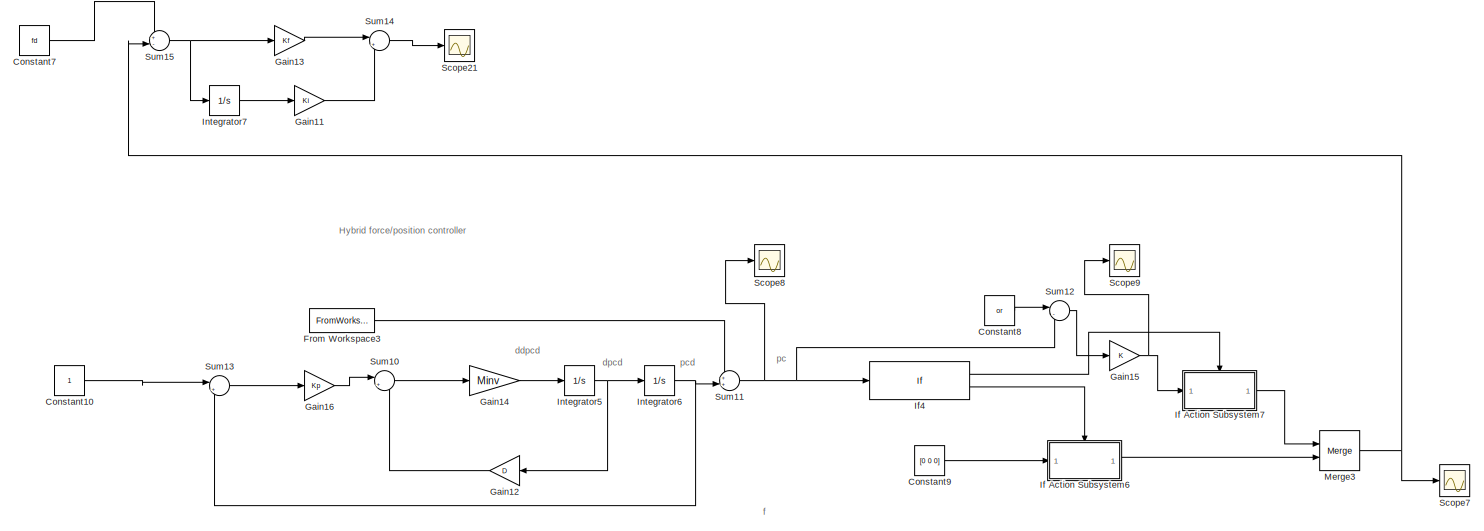
[diagram: root canvas - part 1/6, top right region]
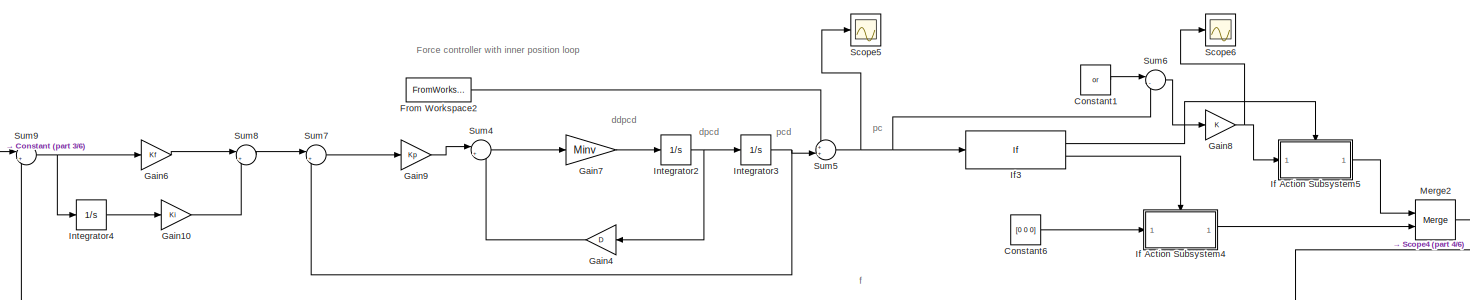
[diagram: root canvas - part 2/6, middle right region]
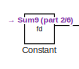
[diagram: root canvas - part 3/6, central region]
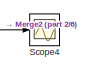
[diagram: root canvas - part 4/6, middle right region]
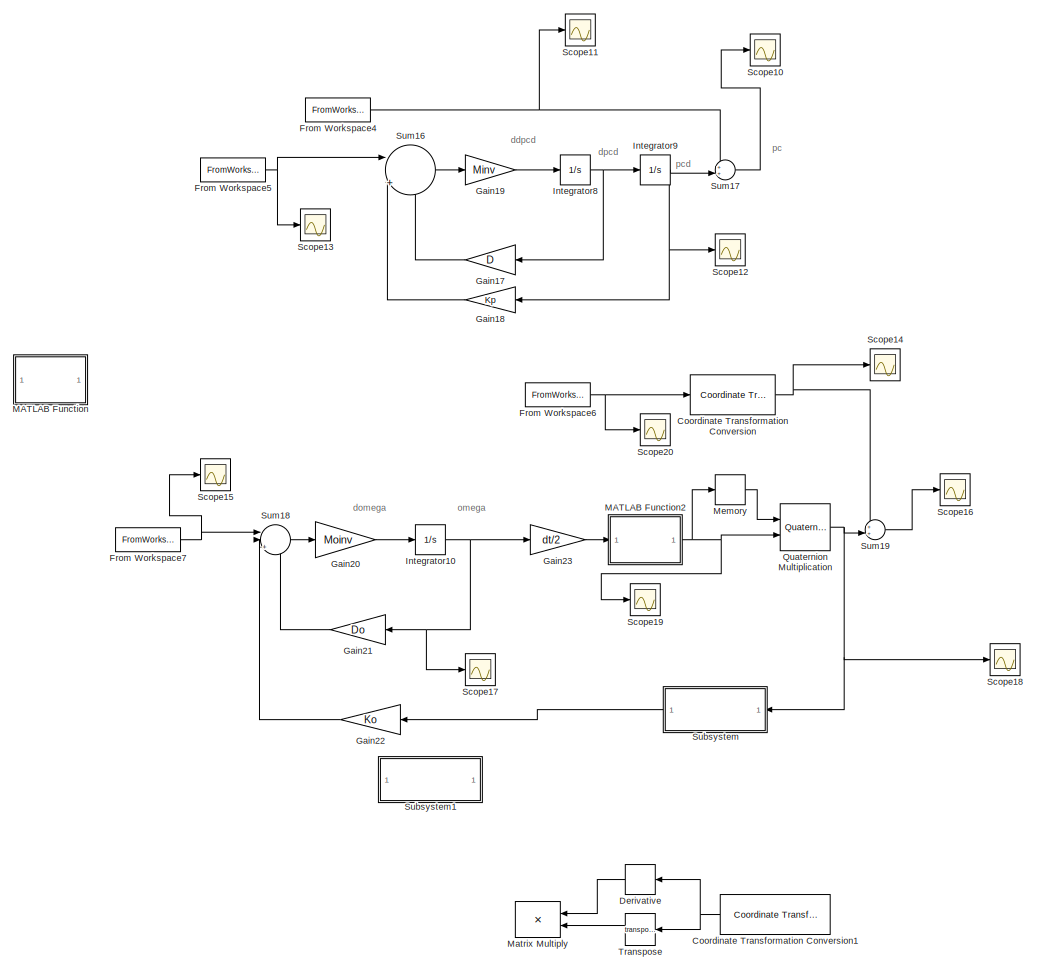
[diagram: root canvas - part 5/6, bottom left region]
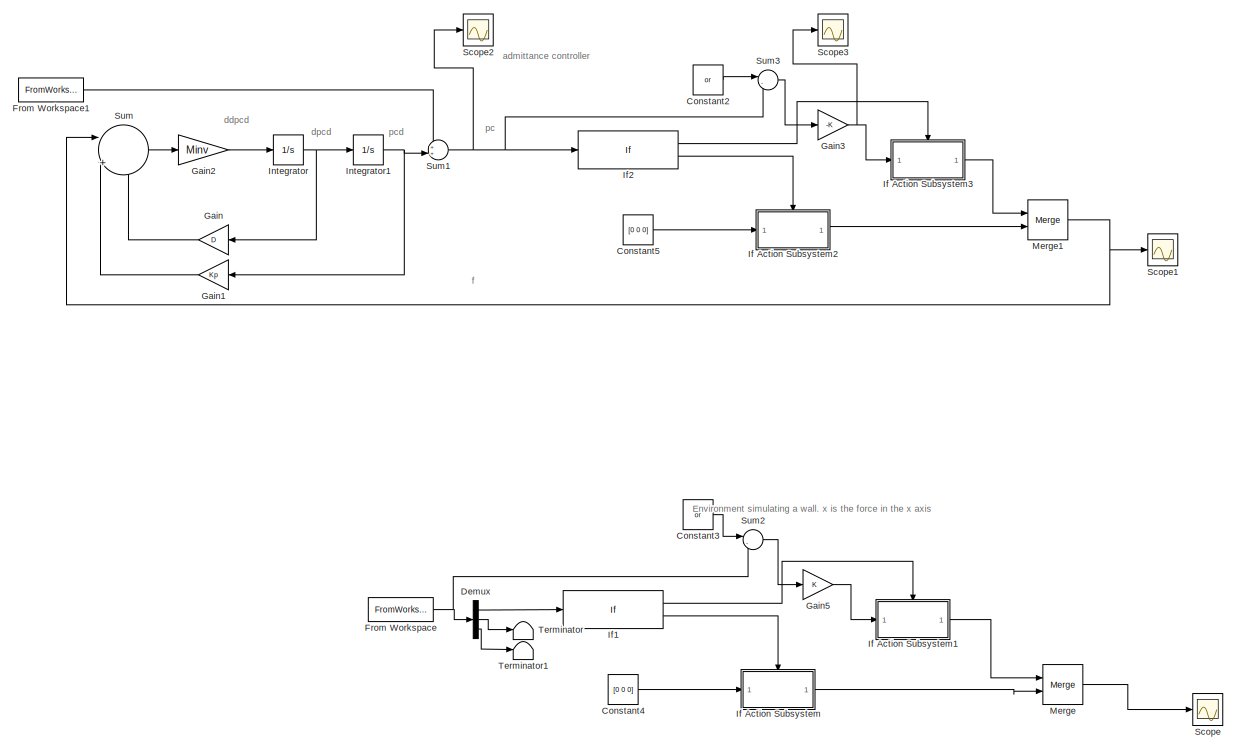
[diagram: root canvas - part 6/6, bottom right region]
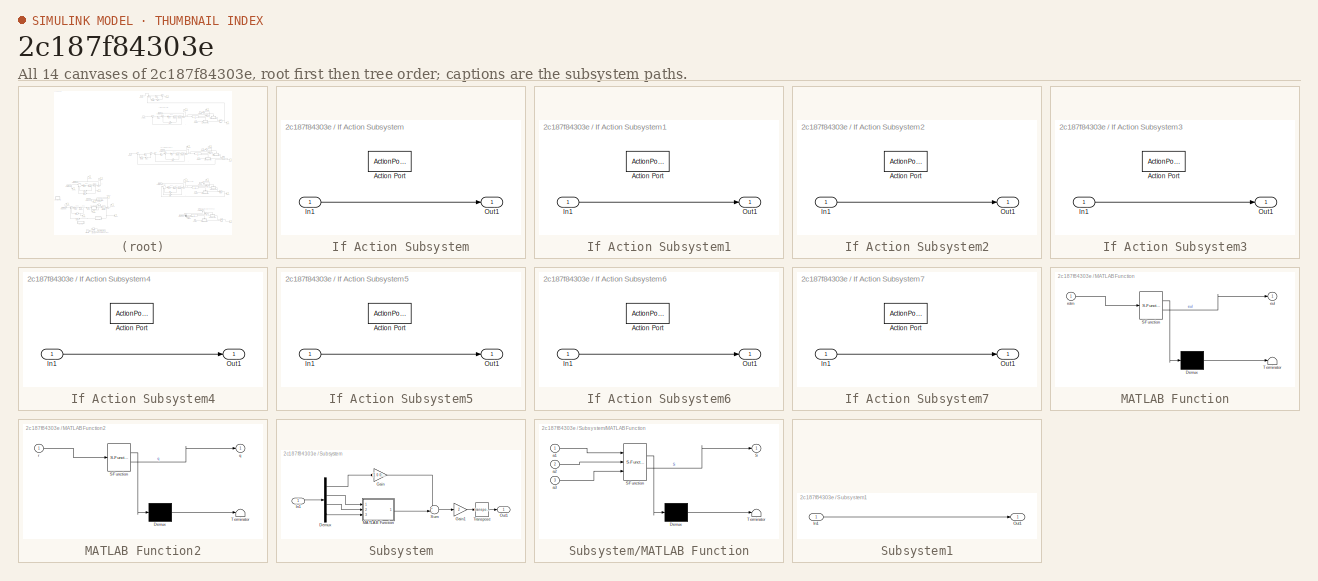
[diagram: thumbnail index - all 14 canvases of the model, root first then tree order]
MODEL slx_2c187f84303e
KIND model
CONFIG AbsTol = auto
CONFIG EnableMultiTasking = off
CONFIG FixedStep = auto
CONFIG MaxStep = auto
CONFIG MinStep = auto
CONFIG RelTol = 1e-3
CONFIG SampleTimeConstraint = Unconstrained
CONFIG SolverName = VariableStepAuto
CONFIG StartTime = 0.0
CONFIG StopTime = 25
BLOCK [Constant] Constant
  Value = fd
BLOCK [Constant] Constant1
  Value = or
BLOCK [Constant] Constant10
BLOCK [Constant] Constant2
  Value = or
BLOCK [Constant] Constant3
  Commented = on
  Value = or
BLOCK [Constant] Constant4
  Commented = on
  Value = [0 0 0]
BLOCK [Constant] Constant5
  Value = [0 0 0]
BLOCK [Constant] Constant6
  Value = [0 0 0]
BLOCK [Constant] Constant7
  Value = fd
BLOCK [Constant] Constant8
  Value = or
BLOCK [Constant] Constant9
  Value = [0 0 0]
BLOCK [Reference] Coordinate Transformation Conversion  REF=robotcorelib/Coordinate Transformation Conversion
  Ports = [1, 1]
  SourceBlock = robotcorelib/Coordinate Transformation Conversion
  SourceProductBaseCode = RO,NV,RR,UV
  SourceType = robotics.slcore.internal.block.CoordinateTransformationConversion
BLOCK [Reference] Coordinate Transformation Conversion1  REF=robotcorelib/Coordinate Transformation Conversion
  Commented = on
  Ports = [1, 1]
  SourceBlock = robotcorelib/Coordinate Transformation Conversion
  SourceProductBaseCode = RO,NV,RR,UV
  SourceType = robotics.slcore.internal.block.CoordinateTransformationConversion
BLOCK [Demux] Demux
  Commented = on
  Outputs = 3
  Ports = [1, 3]
BLOCK [Derivative] Derivative
  Commented = on
BLOCK [FromWorkspace] From Workspace
  Commented = on
  VariableName = motion
BLOCK [FromWorkspace] From Workspace1
  VariableName = motion
BLOCK [FromWorkspace] From Workspace2
  VariableName = motion
BLOCK [FromWorkspace] From Workspace3
  VariableName = motion
BLOCK [FromWorkspace] From Workspace4
  VariableName = motion
BLOCK [FromWorkspace] From Workspace5
  VariableName = force
BLOCK [FromWorkspace] From Workspace6
  VariableName = motiono
BLOCK [FromWorkspace] From Workspace7
  VariableName = torque
BLOCK [Gain] Gain
  Gain = D
  Multiplication = Matrix(K*u)
BLOCK [Gain] Gain1
  Gain = Kp
  Multiplication = Matrix(K*u)
BLOCK [Gain] Gain10
  Gain = Ki
  Multiplication = Matrix(K*u)
BLOCK [Gain] Gain11
  Gain = Ki
  Multiplication = Matrix(K*u)
BLOCK [Gain] Gain12
  Gain = D
  Multiplication = Matrix(K*u)
BLOCK [Gain] Gain13
  Gain = Kf
  Multiplication = Matrix(K*u)
BLOCK [Gain] Gain14
  Gain = Minv
  Multiplication = Matrix(K*u)
BLOCK [Gain] Gain15
  Gain = K
  Multiplication = Matrix(K*u)
BLOCK [Gain] Gain16
  Gain = Kp
  Multiplication = Matrix(K*u)
BLOCK [Gain] Gain17
  Gain = D
  Multiplication = Matrix(K*u)
BLOCK [Gain] Gain18
  Gain = Kp
  Multiplication = Matrix(K*u)
BLOCK [Gain] Gain19
  Gain = Minv
  Multiplication = Matrix(K*u)
BLOCK [Gain] Gain2
  Gain = Minv
  Multiplication = Matrix(K*u)
BLOCK [Gain] Gain20
  Gain = Moinv
  Multiplication = Matrix(K*u)
BLOCK [Gain] Gain21
  Gain = Do
  Multiplication = Matrix(K*u)
BLOCK [Gain] Gain22
  Gain = Ko
  Multiplication = Matrix(u*K)
BLOCK [Gain] Gain23
  Gain = dt/2
  Multiplication = Matrix(K*u)
BLOCK [Gain] Gain3
  Gain = -K
  Multiplication = Matrix(K*u)
BLOCK [Gain] Gain4
  Gain = D
  Multiplication = Matrix(K*u)
BLOCK [Gain] Gain5
  Commented = on
  Gain = K
  Multiplication = Matrix(K*u)
BLOCK [Gain] Gain6
  Gain = Kf
  Multiplication = Matrix(K*u)
BLOCK [Gain] Gain7
  Gain = Minv
  Multiplication = Matrix(K*u)
BLOCK [Gain] Gain8
  Gain = K
  Multiplication = Matrix(K*u)
BLOCK [Gain] Gain9
  Gain = Kp
  Multiplication = Matrix(K*u)
BLOCK [SubSystem] If Action Subsystem
  Commented = on
  Ports = [1, 1, 0, 0, 0, 0, 0, 1]
  RequestExecContextInheritance = off
  TreatAsAtomicUnit = on
BLOCK [ActionPort] If Action Subsystem/Action Port
  ActionPortLabel = else
BLOCK [Inport] If Action Subsystem/In1
BLOCK [Outport] If Action Subsystem/Out1
BLOCK [SubSystem] If Action Subsystem1
  Commented = on
  Ports = [1, 1, 0, 0, 0, 0, 0, 1]
  RequestExecContextInheritance = off
  TreatAsAtomicUnit = on
BLOCK [ActionPort] If Action Subsystem1/Action Port
  ActionPortLabel = if(u1 >= or(1))
BLOCK [Inport] If Action Subsystem1/In1
BLOCK [Outport] If Action Subsystem1/Out1
BLOCK [SubSystem] If Action Subsystem2
  Ports = [1, 1, 0, 0, 0, 0, 0, 1]
  RequestExecContextInheritance = off
  TreatAsAtomicUnit = on
BLOCK [ActionPort] If Action Subsystem2/Action Port
  ActionPortLabel = else
BLOCK [Inport] If Action Subsystem2/In1
BLOCK [Outport] If Action Subsystem2/Out1
BLOCK [SubSystem] If Action Subsystem3
  Ports = [1, 1, 0, 0, 0, 0, 0, 1]
  RequestExecContextInheritance = off
  TreatAsAtomicUnit = on
BLOCK [ActionPort] If Action Subsystem3/Action Port
  ActionPortLabel = if(u1(1) >= or(1))
BLOCK [Inport] If Action Subsystem3/In1
BLOCK [Outport] If Action Subsystem3/Out1
BLOCK [SubSystem] If Action Subsystem4
  Ports = [1, 1, 0, 0, 0, 0, 0, 1]
  RequestExecContextInheritance = off
  TreatAsAtomicUnit = on
BLOCK [ActionPort] If Action Subsystem4/Action Port
  ActionPortLabel = else
BLOCK [Inport] If Action Subsystem4/In1
BLOCK [Outport] If Action Subsystem4/Out1
BLOCK [SubSystem] If Action Subsystem5
  Ports = [1, 1, 0, 0, 0, 0, 0, 1]
  RequestExecContextInheritance = off
  TreatAsAtomicUnit = on
BLOCK [ActionPort] If Action Subsystem5/Action Port
  ActionPortLabel = if(u1(1) >= or(1))
BLOCK [Inport] If Action Subsystem5/In1
BLOCK [Outport] If Action Subsystem5/Out1
BLOCK [SubSystem] If Action Subsystem6
  Ports = [1, 1, 0, 0, 0, 0, 0, 1]
  RequestExecContextInheritance = off
  TreatAsAtomicUnit = on
BLOCK [ActionPort] If Action Subsystem6/Action Port
  ActionPortLabel = else
BLOCK [Inport] If Action Subsystem6/In1
BLOCK [Outport] If Action Subsystem6/Out1
BLOCK [SubSystem] If Action Subsystem7
  Ports = [1, 1, 0, 0, 0, 0, 0, 1]
  RequestExecContextInheritance = off
  TreatAsAtomicUnit = on
BLOCK [ActionPort] If Action Subsystem7/Action Port
  ActionPortLabel = if(u1(1) >= or(1))
BLOCK [Inport] If Action Subsystem7/In1
BLOCK [Outport] If Action Subsystem7/Out1
BLOCK [If] If1
  Commented = on
  IfExpression = u1 >= or(1)
  Ports = [1, 2]
BLOCK [If] If2
  IfExpression = u1(1) >= or(1)
  Ports = [1, 2]
BLOCK [If] If3
  IfExpression = u1(1) >= or(1)
  Ports = [1, 2]
BLOCK [If] If4
  IfExpression = u1(1) >= or(1)
  Ports = [1, 2]
BLOCK [Integrator] Integrator
  Ports = [1, 1]
BLOCK [Integrator] Integrator1
  Ports = [1, 1]
BLOCK [Integrator] Integrator10
  Ports = [1, 1]
BLOCK [Integrator] Integrator2
  Ports = [1, 1]
BLOCK [Integrator] Integrator3
  Ports = [1, 1]
BLOCK [Integrator] Integrator4
  Ports = [1, 1]
BLOCK [Integrator] Integrator5
  Ports = [1, 1]
BLOCK [Integrator] Integrator6
  Ports = [1, 1]
BLOCK [Integrator] Integrator7
  Ports = [1, 1]
BLOCK [Integrator] Integrator8
  Ports = [1, 1]
BLOCK [Integrator] Integrator9
  Ports = [1, 1]
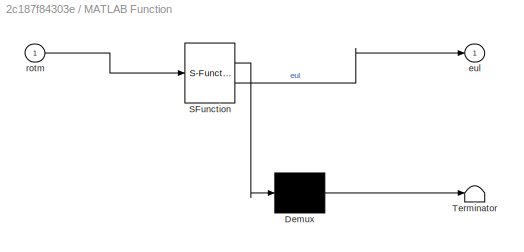
BLOCK [SubSystem] MATLAB Function
  Commented = on
  ErrorFcn = Stateflow.Translate.translate
  PermitHierarchicalResolution = ExplicitOnly
  Ports = [1, 1]
  RequestExecContextInheritance = off
  SFBlockType = MATLAB Function
  TreatAsAtomicUnit = on
BLOCK [Demux] MATLAB Function/ Demux 
  Outputs = 1
  Ports = [1, 1]
BLOCK [S-Function] MATLAB Function/ SFunction 
  EnableBusSupport = on
  FunctionName = sf_sfun
  PortCounts = [1 2]
  Ports = [1, 2]
  SFcnIsStateOwnerBlock = off
  SFunctionDeploymentMode = off
  Tag = Stateflow S-Function 2
BLOCK [Terminator] MATLAB Function/ Terminator 
BLOCK [Outport] MATLAB Function/eul
BLOCK [Inport] MATLAB Function/rotm
BLOCK [SubSystem] MATLAB Function2
  ErrorFcn = Stateflow.Translate.translate
  PermitHierarchicalResolution = ExplicitOnly
  Ports = [1, 1]
  RequestExecContextInheritance = off
  SFBlockType = MATLAB Function
  TreatAsAtomicUnit = on
BLOCK [Demux] MATLAB Function2/ Demux 
  Outputs = 1
  Ports = [1, 1]
BLOCK [S-Function] MATLAB Function2/ SFunction 
  EnableBusSupport = on
  FunctionName = sf_sfun
  PortCounts = [1 2]
  Ports = [1, 2]
  SFcnIsStateOwnerBlock = off
  SFunctionDeploymentMode = off
  Tag = Stateflow S-Function 3
BLOCK [Terminator] MATLAB Function2/ Terminator 
BLOCK [Outport] MATLAB Function2/q
BLOCK [Inport] MATLAB Function2/r
BLOCK [Product] Matrix Multiply
  Commented = on
  Multiplication = Matrix(*)
  Ports = [2, 1]
BLOCK [Memory] Memory
BLOCK [Merge] Merge
  Commented = on
  Ports = [2, 1]
BLOCK [Merge] Merge1
  Ports = [2, 1]
BLOCK [Merge] Merge2
  Ports = [2, 1]
BLOCK [Merge] Merge3
  Ports = [2, 1]
BLOCK [Reference] Quaternion Multiplication  REF=aerolibutil/Quaternion
Multiplication
  Ports = [2, 1]
  SourceBlock = aerolibutil/Quaternion\nMultiplication
  SourceProductBaseCode = AE
  SourceType = Quaternion Multiplication
BLOCK [Scope] Scope
  Commented = on
  Floating = off
  NumInputPorts = 1
  Ports = [1]
  ScopeSpecificationString = Simulink.scopes.TimeScopeBlockCfg('CurrentConfiguration', extmgr.ConfigurationSet(extmgr.Configuration('Core','General UI',true),extmgr.Configuration('Core','Source UI',true),extmgr.Configuration('Sources','WiredSimulink',true),extmgr.Configuration('Visuals','Time Domain',true,'SerializedDisplays',{struct('MinYLimReal','-1.875','MaxYLimReal','16.875','YLabelReal','','MinYLimMag','0.00000','MaxYLim...<+1506ch>
BLOCK [Scope] Scope1
  Floating = off
  NumInputPorts = 1
  Ports = [1]
  ScopeSpecificationString = Simulink.scopes.TimeScopeBlockCfg('CurrentConfiguration', extmgr.ConfigurationSet(extmgr.Configuration('Core','General UI',true),extmgr.Configuration('Core','Source UI',true),extmgr.Configuration('Sources','WiredSimulink',true,'DataLoggingVariableName','ScopeData1'),extmgr.Configuration('Visuals','Time Domain',true,'SerializedDisplays',{struct('MinYLimReal','-32.77181','MaxYLimReal','42.65382','YL...<+1581ch>
BLOCK [Scope] Scope10
  Floating = off
  NumInputPorts = 1
  Ports = [1]
  ScopeSpecificationString = Simulink.scopes.TimeScopeBlockCfg('CurrentConfiguration', extmgr.ConfigurationSet(extmgr.Configuration('Core','General UI',true),extmgr.Configuration('Core','Source UI',true),extmgr.Configuration('Sources','WiredSimulink',true,'DataLoggingVariableName','ScopeData1'),extmgr.Configuration('Visuals','Time Domain',true,'SerializedDisplays',{struct('MinYLimReal','-1.62407','MaxYLimReal','4.62319','YLab...<+1433ch>
BLOCK [Scope] Scope11
  Floating = off
  NumInputPorts = 1
  Ports = [1]
  ScopeSpecificationString = Simulink.scopes.TimeScopeBlockCfg('CurrentConfiguration', extmgr.ConfigurationSet(extmgr.Configuration('Core','General UI',true),extmgr.Configuration('Core','Source UI',true),extmgr.Configuration('Sources','WiredSimulink',true,'DataLoggingVariableName','ScopeData2'),extmgr.Configuration('Visuals','Time Domain',true,'SerializedDisplays',{struct('MinYLimReal','-1.24999','MaxYLimReal','1.25','YLabelR...<+1433ch>
BLOCK [Scope] Scope12
  Floating = off
  NumInputPorts = 1
  Ports = [1]
  ScopeSpecificationString = Simulink.scopes.TimeScopeBlockCfg('CurrentConfiguration', extmgr.ConfigurationSet(extmgr.Configuration('Core','General UI',true),extmgr.Configuration('Core','Source UI',true),extmgr.Configuration('Sources','WiredSimulink',true,'DataLoggingVariableName','ScopeData1'),extmgr.Configuration('Visuals','Time Domain',true,'SerializedDisplays',{struct('MinYLimReal','-0.249','MaxYLimReal','2.23982','YLabel...<+1429ch>
BLOCK [Scope] Scope13
  Floating = off
  NumInputPorts = 1
  Ports = [1]
  ScopeSpecificationString = Simulink.scopes.TimeScopeBlockCfg('CurrentConfiguration', extmgr.ConfigurationSet(extmgr.Configuration('Core','General UI',true),extmgr.Configuration('Core','Source UI',true),extmgr.Configuration('Sources','WiredSimulink',true,'DataLoggingVariableName','ScopeData2'),extmgr.Configuration('Visuals','Time Domain',true,'SerializedDisplays',{struct('MinYLimReal','-0.375','MaxYLimReal','3.375','YLabelRe...<+1433ch>
BLOCK [Scope] Scope14
  Floating = off
  NumInputPorts = 1
  Ports = [1]
  ScopeSpecificationString = Simulink.scopes.TimeScopeBlockCfg('CurrentConfiguration', extmgr.ConfigurationSet(extmgr.Configuration('Core','General UI',true),extmgr.Configuration('Core','Source UI',true),extmgr.Configuration('Sources','WiredSimulink',true,'DataLoggingVariableName','ScopeData3'),extmgr.Configuration('Visuals','Time Domain',true,'SerializedDisplays',{struct('MinYLimReal','-0.75689','MaxYLimReal','1.19521','YLab...<+1520ch>
BLOCK [Scope] Scope15
  Floating = off
  NumInputPorts = 1
  Ports = [1]
  ScopeSpecificationString = Simulink.scopes.TimeScopeBlockCfg('CurrentConfiguration', extmgr.ConfigurationSet(extmgr.Configuration('Core','General UI',true),extmgr.Configuration('Core','Source UI',true),extmgr.Configuration('Sources','WiredSimulink',true,'DataLoggingVariableName','ScopeData4'),extmgr.Configuration('Visuals','Time Domain',true,'SerializedDisplays',{struct('MinYLimReal','-0.125','MaxYLimReal','1.125','YLabelRe...<+1433ch>
BLOCK [Scope] Scope16
  Floating = off
  NumInputPorts = 1
  Ports = [1]
  ScopeSpecificationString = Simulink.scopes.TimeScopeBlockCfg('CurrentConfiguration', extmgr.ConfigurationSet(extmgr.Configuration('Core','General UI',true),extmgr.Configuration('Core','Source UI',true),extmgr.Configuration('Sources','WiredSimulink',true,'DataLoggingVariableName','ScopeData5'),extmgr.Configuration('Visuals','Time Domain',true,'SerializedDisplays',{struct('MinYLimReal','-0.85765','MaxYLimReal','2.24678','YLab...<+1396ch>
BLOCK [Scope] Scope17
  Floating = off
  NumInputPorts = 1
  Ports = [1]
  ScopeSpecificationString = Simulink.scopes.TimeScopeBlockCfg('CurrentConfiguration', extmgr.ConfigurationSet(extmgr.Configuration('Core','General UI',true),extmgr.Configuration('Core','Source UI',true),extmgr.Configuration('Sources','WiredSimulink',true,'DataLoggingVariableName','ScopeData6'),extmgr.Configuration('Visuals','Time Domain',true,'SerializedDisplays',{struct('MinYLimReal','-0.14552','MaxYLimReal','1.29921','YLab...<+1407ch>
BLOCK [Scope] Scope18
  Floating = off
  NumInputPorts = 1
  Ports = [1]
  ScopeSpecificationString = Simulink.scopes.TimeScopeBlockCfg('CurrentConfiguration', extmgr.ConfigurationSet(extmgr.Configuration('Core','General UI',true),extmgr.Configuration('Core','Source UI',true),extmgr.Configuration('Sources','WiredSimulink',true,'DataLoggingVariableName','ScopeData7'),extmgr.Configuration('Visuals','Time Domain',true,'SerializedDisplays',{struct('MinYLimReal','-0.125','MaxYLimReal','1.125','YLabelRe...<+1588ch>
BLOCK [Scope] Scope19
  Floating = off
  NumInputPorts = 1
  Ports = [1]
  ScopeSpecificationString = Simulink.scopes.TimeScopeBlockCfg('CurrentConfiguration', extmgr.ConfigurationSet(extmgr.Configuration('Core','General UI',true),extmgr.Configuration('Core','Source UI',true),extmgr.Configuration('Sources','WiredSimulink',true,'DataLoggingVariableName','ScopeData8'),extmgr.Configuration('Visuals','Time Domain',true,'SerializedDisplays',{struct('MinYLimReal','-0.125','MaxYLimReal','1.125','YLabelRe...<+1520ch>
BLOCK [Scope] Scope2
  Floating = off
  NumInputPorts = 1
  Ports = [1]
  ScopeSpecificationString = Simulink.scopes.TimeScopeBlockCfg('CurrentConfiguration', extmgr.ConfigurationSet(extmgr.Configuration('Core','General UI',true),extmgr.Configuration('Core','Source UI',true),extmgr.Configuration('Sources','WiredSimulink',true,'DataLoggingVariableName','ScopeData2'),extmgr.Configuration('Visuals','Time Domain',true,'SerializedDisplays',{struct('MinYLimReal','-10.05059','MaxYLimReal','10.18354','YL...<+1438ch>
BLOCK [Scope] Scope20
  Floating = off
  NumInputPorts = 1
  Ports = [1]
  ScopeSpecificationString = Simulink.scopes.TimeScopeBlockCfg('CurrentConfiguration', extmgr.ConfigurationSet(extmgr.Configuration('Core','General UI',true),extmgr.Configuration('Core','Source UI',true),extmgr.Configuration('Sources','WiredSimulink',true,'DataLoggingVariableName','ScopeData9'),extmgr.Configuration('Visuals','Time Domain',true),extmgr.Configuration('Tools','Plot Navigation',true),extmgr.Configuration('Tools',...<+58ch>
BLOCK [Scope] Scope21
  Floating = off
  NumInputPorts = 1
  Ports = [1]
  ScopeSpecificationString = Simulink.scopes.TimeScopeBlockCfg('CurrentConfiguration', extmgr.ConfigurationSet(extmgr.Configuration('Core','General UI',true),extmgr.Configuration('Core','Source UI',true),extmgr.Configuration('Sources','WiredSimulink',true,'DataLoggingVariableName','ScopeData1'),extmgr.Configuration('Visuals','Time Domain',true),extmgr.Configuration('Tools','Plot Navigation',true),extmgr.Configuration('Tools',...<+40ch>
BLOCK [Scope] Scope3
  Floating = off
  NumInputPorts = 1
  Ports = [1]
  ScopeSpecificationString = Simulink.scopes.TimeScopeBlockCfg('CurrentConfiguration', extmgr.ConfigurationSet(extmgr.Configuration('Core','General UI',true),extmgr.Configuration('Core','Source UI',true),extmgr.Configuration('Sources','WiredSimulink',true,'DataLoggingVariableName','ScopeData3'),extmgr.Configuration('Visuals','Time Domain',true,'SerializedDisplays',{struct('MinYLimReal','-4.96554','MaxYLimReal','6.10728','YLab...<+1386ch>
BLOCK [Scope] Scope4
  Floating = off
  NumInputPorts = 1
  Ports = [1]
  ScopeSpecificationString = Simulink.scopes.TimeScopeBlockCfg('CurrentConfiguration', extmgr.ConfigurationSet(extmgr.Configuration('Core','General UI',true),extmgr.Configuration('Core','Source UI',true),extmgr.Configuration('Sources','WiredSimulink',true,'DataLoggingVariableName','ScopeData1'),extmgr.Configuration('Visuals','Time Domain',true,'SerializedDisplays',{struct('MinYLimReal','-0.34735','MaxYLimReal','9.15889','YLab...<+1600ch>
BLOCK [Scope] Scope5
  Floating = off
  NumInputPorts = 1
  Ports = [1]
  ScopeSpecificationString = Simulink.scopes.TimeScopeBlockCfg('CurrentConfiguration', extmgr.ConfigurationSet(extmgr.Configuration('Core','General UI',true),extmgr.Configuration('Core','Source UI',true),extmgr.Configuration('Sources','WiredSimulink',true,'DataLoggingVariableName','ScopeData2'),extmgr.Configuration('Visuals','Time Domain',true,'SerializedDisplays',{struct('MinYLimReal','-10.05059','MaxYLimReal','10.18354','YL...<+1438ch>
BLOCK [Scope] Scope6
  Floating = off
  NumInputPorts = 1
  Ports = [1]
  ScopeSpecificationString = Simulink.scopes.TimeScopeBlockCfg('CurrentConfiguration', extmgr.ConfigurationSet(extmgr.Configuration('Core','General UI',true),extmgr.Configuration('Core','Source UI',true),extmgr.Configuration('Sources','WiredSimulink',true,'DataLoggingVariableName','ScopeData3'),extmgr.Configuration('Visuals','Time Domain',true,'SerializedDisplays',{struct('MinYLimReal','-6.33687','MaxYLimReal','7.03179','YLab...<+1386ch>
BLOCK [Scope] Scope7
  Floating = off
  NumInputPorts = 1
  Ports = [1]
  ScopeSpecificationString = Simulink.scopes.TimeScopeBlockCfg('CurrentConfiguration', extmgr.ConfigurationSet(extmgr.Configuration('Core','General UI',true),extmgr.Configuration('Core','Source UI',true),extmgr.Configuration('Sources','WiredSimulink',true,'DataLoggingVariableName','ScopeData4'),extmgr.Configuration('Visuals','Time Domain',true,'SerializedDisplays',{struct('MinYLimReal','-0.34735','MaxYLimReal','9.15889','YLab...<+1600ch>
BLOCK [Scope] Scope8
  Floating = off
  NumInputPorts = 1
  Ports = [1]
  ScopeSpecificationString = Simulink.scopes.TimeScopeBlockCfg('CurrentConfiguration', extmgr.ConfigurationSet(extmgr.Configuration('Core','General UI',true),extmgr.Configuration('Core','Source UI',true),extmgr.Configuration('Sources','WiredSimulink',true,'DataLoggingVariableName','ScopeData5'),extmgr.Configuration('Visuals','Time Domain',true,'SerializedDisplays',{struct('MinYLimReal','-10.05059','MaxYLimReal','10.18354','YL...<+1438ch>
BLOCK [Scope] Scope9
  Floating = off
  NumInputPorts = 1
  Ports = [1]
  ScopeSpecificationString = Simulink.scopes.TimeScopeBlockCfg('CurrentConfiguration', extmgr.ConfigurationSet(extmgr.Configuration('Core','General UI',true),extmgr.Configuration('Core','Source UI',true),extmgr.Configuration('Sources','WiredSimulink',true,'DataLoggingVariableName','ScopeData6'),extmgr.Configuration('Visuals','Time Domain',true,'SerializedDisplays',{struct('MinYLimReal','-6.33687','MaxYLimReal','7.03179','YLab...<+1386ch>
BLOCK [SubSystem] Subsystem
  Ports = [1, 1]
  RequestExecContextInheritance = off
BLOCK [Demux] Subsystem/Demux
  Ports = [1, 4]
BLOCK [Gain] Subsystem/Gain
  Gain = [1 0 0; 0 1 0; 0 0 1]
BLOCK [Gain] Subsystem/Gain1
  Gain = 2
BLOCK [Inport] Subsystem/In1
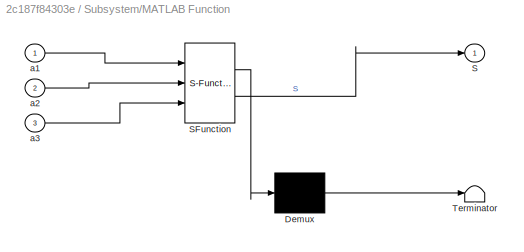
BLOCK [SubSystem] Subsystem/MATLAB Function
  ErrorFcn = Stateflow.Translate.translate
  PermitHierarchicalResolution = ExplicitOnly
  Ports = [3, 1]
  RequestExecContextInheritance = off
  SFBlockType = MATLAB Function
  TreatAsAtomicUnit = on
BLOCK [Demux] Subsystem/MATLAB Function/ Demux 
  Outputs = 1
  Ports = [1, 1]
BLOCK [S-Function] Subsystem/MATLAB Function/ SFunction 
  EnableBusSupport = on
  FunctionName = sf_sfun
  PortCounts = [3 2]
  Ports = [3, 2]
  SFcnIsStateOwnerBlock = off
  SFunctionDeploymentMode = off
  Tag = Stateflow S-Function 1
BLOCK [Terminator] Subsystem/MATLAB Function/ Terminator 
BLOCK [Outport] Subsystem/MATLAB Function/S
BLOCK [Inport] Subsystem/MATLAB Function/a1
BLOCK [Inport] Subsystem/MATLAB Function/a2
  Port = 2
BLOCK [Inport] Subsystem/MATLAB Function/a3
  Port = 3
BLOCK [Outport] Subsystem/Out1
BLOCK [Sum] Subsystem/Sum
  Inputs = +-|
  Ports = [2, 1]
BLOCK [Math] Subsystem/Transpose
  Operator = transpose
  Ports = [1, 1]
BLOCK [SubSystem] Subsystem1
  Commented = on
  Ports = [1, 1]
  RequestExecContextInheritance = off
BLOCK [Inport] Subsystem1/In1
BLOCK [Outport] Subsystem1/Out1
BLOCK [Sum] Sum
  Inputs = ||+--
  Ports = [3, 1]
BLOCK [Sum] Sum1
  Inputs = ++|
  Ports = [2, 1]
BLOCK [Sum] Sum10
  Inputs = |+-
  Ports = [2, 1]
BLOCK [Sum] Sum11
  Inputs = ++|
  Ports = [2, 1]
BLOCK [Sum] Sum12
  Inputs = |-+
  Ports = [2, 1]
BLOCK [Sum] Sum13
  Inputs = |+-
  Ports = [2, 1]
BLOCK [Sum] Sum14
  Inputs = |++
  Ports = [2, 1]
BLOCK [Sum] Sum15
  Inputs = +-|
  Ports = [2, 1]
BLOCK [Sum] Sum16
  Inputs = ||+--
  Ports = [3, 1]
BLOCK [Sum] Sum17
  Inputs = ++|
  Ports = [2, 1]
BLOCK [Sum] Sum18
  Inputs = ||+--
  Ports = [3, 1]
BLOCK [Sum] Sum19
  Inputs = ++|
  Ports = [2, 1]
BLOCK [Sum] Sum2
  Commented = on
  Inputs = |-+
  Ports = [2, 1]
BLOCK [Sum] Sum3
  Inputs = |-+
  Ports = [2, 1]
BLOCK [Sum] Sum4
  Inputs = |+-
  Ports = [2, 1]
BLOCK [Sum] Sum5
  Inputs = ++|
  Ports = [2, 1]
BLOCK [Sum] Sum6
  Inputs = |-+
  Ports = [2, 1]
BLOCK [Sum] Sum7
  Inputs = |+-
  Ports = [2, 1]
BLOCK [Sum] Sum8
  Inputs = |++
  Ports = [2, 1]
BLOCK [Sum] Sum9
  Inputs = |+-
  Ports = [2, 1]
BLOCK [Terminator] Terminator
  Commented = on
BLOCK [Terminator] Terminator1
  Commented = on
BLOCK [Math] Transpose
  Commented = on
  Operator = transpose
  Ports = [1, 1]
ANNOTATION (root): Environment simulating a wall. x is the force in the x axis
ANNOTATION (root): Force controller with inner position loop
ANNOTATION (root): Hybrid force/position controller
ANNOTATION (root): admittance controller
ANNOTATION (root): ddpcd
ANNOTATION (root): domega
ANNOTATION (root): dpcd
ANNOTATION (root): f
ANNOTATION (root): omega
ANNOTATION (root): pc
ANNOTATION (root): pcd
LINE Constant10:1 -> Sum13:1
LINE Constant1:1 -> Sum6:1
LINE Constant2:1 -> Sum3:1
LINE Constant3:1 -> Sum2:1
LINE Constant4:1 -> If Action Subsystem:1
LINE Constant5:1 -> If Action Subsystem2:1
LINE Constant6:1 -> If Action Subsystem4:1
LINE Constant7:1 -> Sum15:1
LINE Constant8:1 -> Sum12:1
LINE Constant9:1 -> If Action Subsystem6:1
LINE Constant:1 -> Sum9:1
NET Coordinate Transformation Conversion1:1 -> Derivative:1, Transpose:1
NET Coordinate Transformation Conversion:1 -> Scope14:1, Sum19:1
LINE Demux:1 -> If1:1
LINE Demux:2 -> Terminator:1
LINE Demux:3 -> Terminator1:1
LINE Derivative:1 -> Matrix Multiply:1
LINE From Workspace1:1 -> Sum1:1
LINE From Workspace2:1 -> Sum5:1
LINE From Workspace3:1 -> Sum11:1
NET From Workspace4:1 -> Scope11:1, Sum17:1
NET From Workspace5:1 -> Scope13:1, Sum16:1
NET From Workspace6:1 -> Coordinate Transformation Conversion:1, Scope20:1
NET From Workspace7:1 -> Scope15:1, Sum18:1
NET From Workspace:1 -> Demux:1, Sum2:2
LINE Gain10:1 -> Sum8:2
LINE Gain11:1 -> Sum14:2
LINE Gain12:1 -> Sum10:2
LINE Gain13:1 -> Sum14:1
LINE Gain14:1 -> Integrator5:1
NET Gain15:1 -> If Action Subsystem7:1, Scope9:1
LINE Gain16:1 -> Sum10:1
LINE Gain17:1 -> Sum16:3
LINE Gain18:1 -> Sum16:2
LINE Gain19:1 -> Integrator8:1
LINE Gain1:1 -> Sum:2
LINE Gain20:1 -> Integrator10:1
LINE Gain21:1 -> Sum18:3
LINE Gain22:1 -> Sum18:2
LINE Gain23:1 -> MATLAB Function2:1
LINE Gain2:1 -> Integrator:1
NET Gain3:1 -> If Action Subsystem3:1, Scope3:1
LINE Gain4:1 -> Sum4:2
LINE Gain5:1 -> If Action Subsystem1:1
LINE Gain6:1 -> Sum8:1
LINE Gain7:1 -> Integrator2:1
NET Gain8:1 -> If Action Subsystem5:1, Scope6:1
LINE Gain9:1 -> Sum4:1
LINE Gain:1 -> Sum:3
LINE If Action Subsystem/In1:1 -> If Action Subsystem/Out1:1
LINE If Action Subsystem1/In1:1 -> If Action Subsystem1/Out1:1
LINE If Action Subsystem1:1 -> Merge:1
LINE If Action Subsystem2/In1:1 -> If Action Subsystem2/Out1:1
LINE If Action Subsystem2:1 -> Merge1:2
LINE If Action Subsystem3/In1:1 -> If Action Subsystem3/Out1:1
LINE If Action Subsystem3:1 -> Merge1:1
LINE If Action Subsystem4/In1:1 -> If Action Subsystem4/Out1:1
LINE If Action Subsystem4:1 -> Merge2:2
LINE If Action Subsystem5/In1:1 -> If Action Subsystem5/Out1:1
LINE If Action Subsystem5:1 -> Merge2:1
LINE If Action Subsystem6/In1:1 -> If Action Subsystem6/Out1:1
LINE If Action Subsystem6:1 -> Merge3:2
LINE If Action Subsystem7/In1:1 -> If Action Subsystem7/Out1:1
LINE If Action Subsystem7:1 -> Merge3:1
LINE If Action Subsystem:1 -> Merge:2
LINE If1:1 -> If Action Subsystem1:ifaction
LINE If1:2 -> If Action Subsystem:ifaction
LINE If2:1 -> If Action Subsystem3:ifaction
LINE If2:2 -> If Action Subsystem2:ifaction
LINE If3:1 -> If Action Subsystem5:ifaction
LINE If3:2 -> If Action Subsystem4:ifaction
LINE If4:1 -> If Action Subsystem7:ifaction
LINE If4:2 -> If Action Subsystem6:ifaction
NET Integrator10:1 -> Gain21:1, Gain23:1, Scope17:1
NET Integrator1:1 -> Gain1:1, Sum1:2
NET Integrator2:1 -> Gain4:1, Integrator3:1
NET Integrator3:1 -> Sum5:2, Sum7:2
LINE Integrator4:1 -> Gain10:1
NET Integrator5:1 -> Gain12:1, Integrator6:1
NET Integrator6:1 -> Sum11:2, Sum13:2
LINE Integrator7:1 -> Gain11:1
NET Integrator8:1 -> Gain17:1, Integrator9:1
NET Integrator9:1 -> Gain18:1, Scope12:1, Sum17:2
NET Integrator:1 -> Gain:1, Integrator1:1
NET MATLAB Function2:1 -> Memory:1, Quaternion Multiplication:2, Scope19:1
LINE Memory:1 -> Quaternion Multiplication:1
NET Merge1:1 -> Scope1:1, Sum:1
NET Merge2:1 -> Scope4:1, Sum9:2
NET Merge3:1 -> Scope7:1, Sum15:2
LINE Merge:1 -> Scope:1
NET Quaternion Multiplication:1 -> Scope18:1, Subsystem:1, Sum19:2
LINE Subsystem/Demux:1 -> Subsystem/Gain:1
LINE Subsystem/Demux:2 -> Subsystem/MATLAB Function:1
LINE Subsystem/Demux:3 -> Subsystem/MATLAB Function:2
LINE Subsystem/Demux:4 -> Subsystem/MATLAB Function:3
LINE Subsystem/Gain1:1 -> Subsystem/Transpose:1
LINE Subsystem/Gain:1 -> Subsystem/Sum:1
LINE Subsystem/In1:1 -> Subsystem/Demux:1
LINE Subsystem/MATLAB Function:1 -> Subsystem/Sum:2
LINE Subsystem/Sum:1 -> Subsystem/Gain1:1
LINE Subsystem/Transpose:1 -> Subsystem/Out1:1
LINE Subsystem1/In1:1 -> Subsystem1/Out1:1
LINE Subsystem:1 -> Gain22:1
LINE Sum10:1 -> Gain14:1
NET Sum11:1 -> If4:1, Scope8:1, Sum12:2
LINE Sum12:1 -> Gain15:1
LINE Sum13:1 -> Gain16:1
LINE Sum14:1 -> Scope21:1
NET Sum15:1 -> Gain13:1, Integrator7:1
LINE Sum16:1 -> Gain19:1
LINE Sum17:1 -> Scope10:1
LINE Sum18:1 -> Gain20:1
LINE Sum19:1 -> Scope16:1
NET Sum1:1 -> If2:1, Scope2:1, Sum3:2
LINE Sum2:1 -> Gain5:1
LINE Sum3:1 -> Gain3:1
LINE Sum4:1 -> Gain7:1
NET Sum5:1 -> If3:1, Scope5:1, Sum6:2
LINE Sum6:1 -> Gain8:1
LINE Sum7:1 -> Gain9:1
LINE Sum8:1 -> Sum7:1
NET Sum9:1 -> Gain6:1, Integrator4:1
LINE Sum:1 -> Gain2:1
LINE Transpose:1 -> Matrix Multiply:2
note: NET lines group one-source signal fan-out (src -> all destinations, sorted); 1:1 wires keep LINE
CHART MATLAB Function states=1 transitions=1
  STATE_LABEL 'eML_blk_kernel()'
  STATE_LABEL 'SCRIPT:\nfunction eul = rot2eul(rotm)\nrotmeul = [0 -rotm(3) rotm(2); rotm(3) 0 -rotm(1); -rotm(2) rotm(1) 0];\neul = rotm2eul(rotmeul);\n'
CHART MATLAB Function2 states=1 transitions=1
  STATE_LABEL 'eML_blk_kernel()'
  STATE_LABEL "SCRIPT:\nfunction q = vel2quat(r)\n\nn = cos(norm(r));\ne = (r/norm(r)).*sin(r);\n\nq = [n e']';\n"
CHART Subsystem/MATLAB Function states=1 transitions=1
  STATE_LABEL 'eML_blk_kernel()'
  STATE_LABEL 'SCRIPT:\nfunction S = fcn(a1, a2, a3)\n\nS = [0 -a3 a2; a3 0 -a1; -a2 a1 0];\n'
CHART  states=0 transitions=0
CHART  states=0 transitions=0
CHART  states=0 transitions=0
